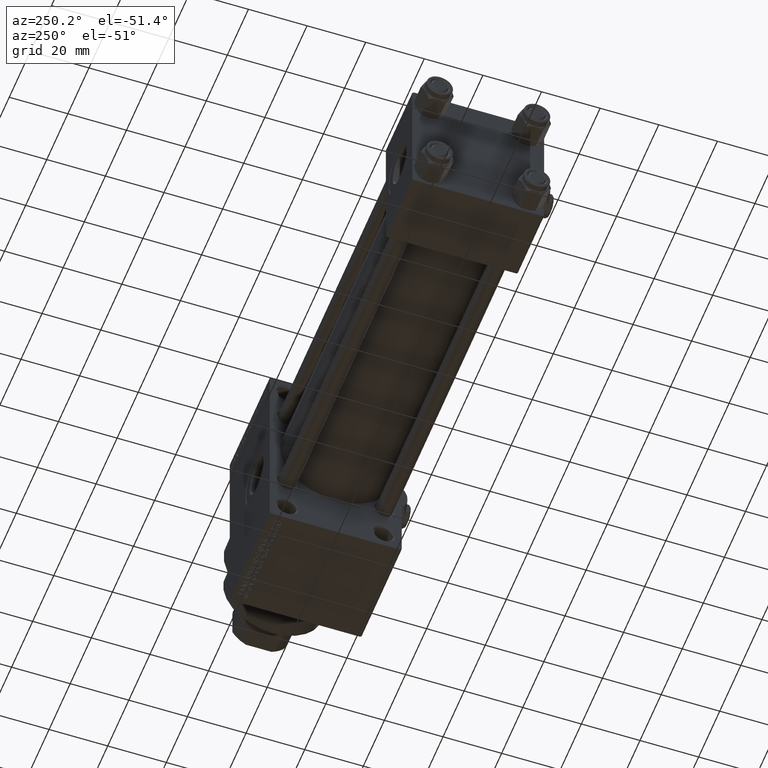
[diagram: clean part render]
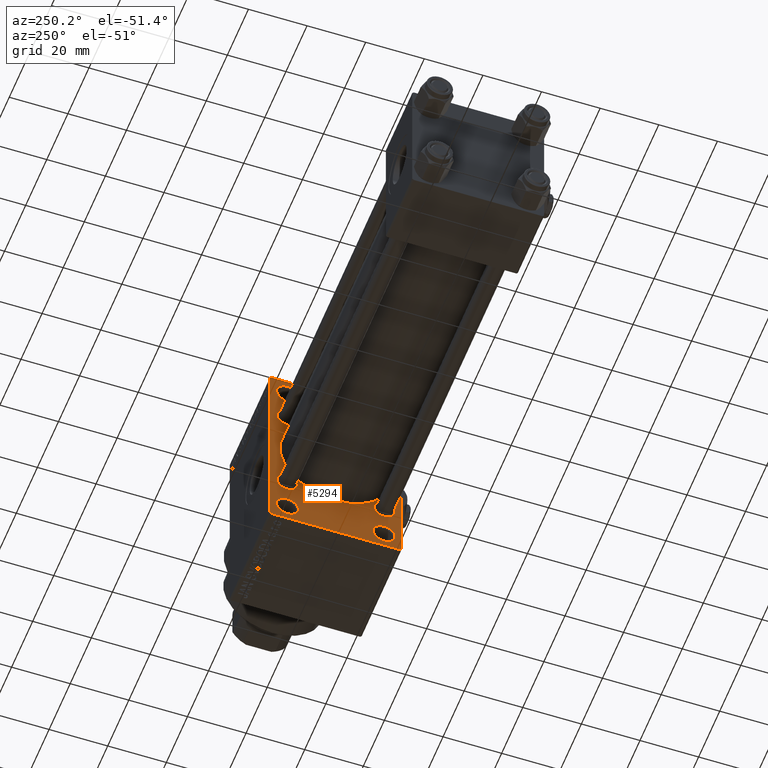
[diagram: same view with one face highlighted and labeled with its STEP entity id]
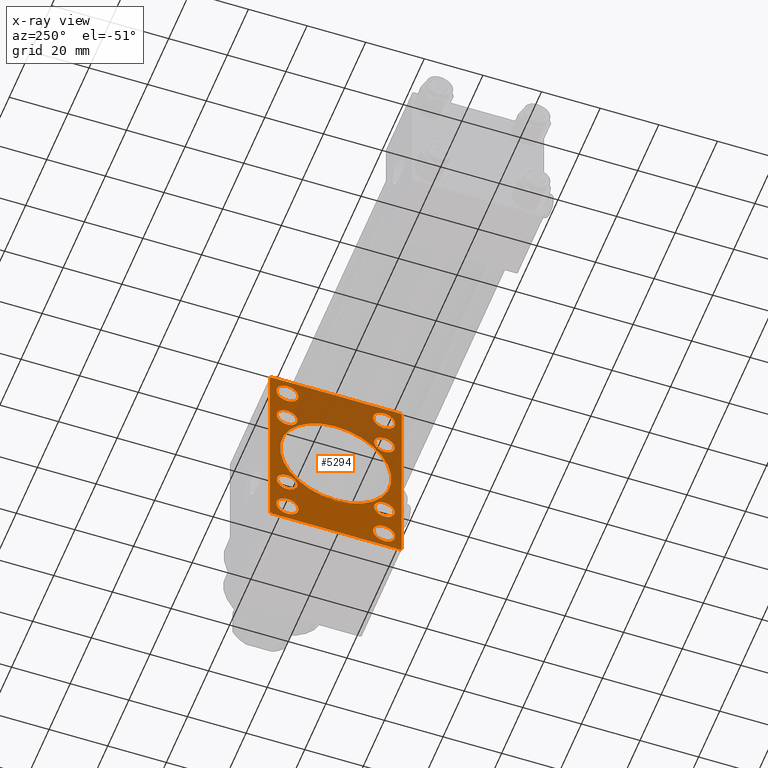
[diagram: x-ray of the same camera — body ghosted, the highlighted face saturated]
A machine part, auxiliary view. The second image highlights one B-rep face of the part: STEP entity #5294.
The next image is the same camera in x-ray: the body ghosted, the highlighted face saturated — about 39% of this face is hidden behind the body in this view.
In plain terms, the highlighted planar face has unit normal (-1, 0, 0).
Its self-contained STEP definition (entity closure, byte-faithful):
#87 = VECTOR ( 'NONE', #7431, 1000.000000000000114 ) ;
#561 = ORIENTED_EDGE ( 'NONE', *, *, #44245, .T. ) ;
#839 = EDGE_CURVE ( 'NONE', #30109, #42118, #27003, .T. ) ;
#1245 = DIRECTION ( 'NONE',  ( 1.000000000000000000, 0.000000000000000000, 0.000000000000000000 ) ) ;
#1407 = ORIENTED_EDGE ( 'NONE', *, *, #6014, .T. ) ;
#1424 = CIRCLE ( 'NONE', #41876, 3.500000000000006661 ) ;
#1483 = EDGE_CURVE ( 'NONE', #24694, #2503, #41616, .T. ) ;
#1682 = CARTESIAN_POINT ( 'NONE',  ( 135.0000000000000000, -16.50000000000000000, -32.75000000000000000 ) ) ;
#1800 = EDGE_CURVE ( 'NONE', #14224, #21044, #7919, .T. ) ;
#1976 = EDGE_CURVE ( 'NONE', #31731, #21044, #29468, .T. ) ;
#2061 = DIRECTION ( 'NONE',  ( 0.000000000000000000, 0.000000000000000000, 1.000000000000000000 ) ) ;
#2194 = CARTESIAN_POINT ( 'NONE',  ( 135.0000000000000000, 16.50000000000000000, 29.00000000000000355 ) ) ;
#2340 = DIRECTION ( 'NONE',  ( -1.000000000000000000, 0.000000000000000000, -0.000000000000000000 ) ) ;
#2401 = DIRECTION ( 'NONE',  ( 0.000000000000000000, -1.000000000000000000, 0.000000000000000000 ) ) ;
#2503 = VERTEX_POINT ( 'NONE', #12936 ) ;
#2793 = DIRECTION ( 'NONE',  ( 1.000000000000000000, 0.000000000000000000, 0.000000000000000000 ) ) ;
#2815 = EDGE_LOOP ( 'NONE', ( #36039, #4506 ) ) ;
#3751 = EDGE_CURVE ( 'NONE', #35847, #33369, #13637, .T. ) ;
#4206 = CARTESIAN_POINT ( 'NONE',  ( 135.0000000000000000, 16.50000000000000000, 29.00000000000000355 ) ) ;
#4506 = ORIENTED_EDGE ( 'NONE', *, *, #20758, .T. ) ;
#4736 = DIRECTION ( 'NONE',  ( 0.000000000000000000, 0.000000000000000000, 1.000000000000000000 ) ) ;
#4874 = DIRECTION ( 'NONE',  ( 1.000000000000000000, 0.000000000000000000, 0.000000000000000000 ) ) ;
#4969 = VECTOR ( 'NONE', #36856, 1000.000000000000000 ) ;
#4994 = ORIENTED_EDGE ( 'NONE', *, *, #31786, .T. ) ;
#5013 = AXIS2_PLACEMENT_3D ( 'NONE', #6060, #2340, #44552 ) ;
#5085 = CIRCLE ( 'NONE', #11428, 19.00000000000000000 ) ;
#5294 = ADVANCED_FACE ( 'NONE', ( #43583, #24909, #47548, #10033, #48036, #17703, #13507, #32862, #43817, #13992 ), #40086, .T. ) ;
#5829 = DIRECTION ( 'NONE',  ( -0.000000000000000000, -0.7071067811865279218, -0.7071067811865671127 ) ) ;
#5836 = DIRECTION ( 'NONE',  ( 0.000000000000000000, 0.000000000000000000, 1.000000000000000000 ) ) ;
#6014 = EDGE_CURVE ( 'NONE', #10787, #14224, #40579, .T. ) ;
#6060 = CARTESIAN_POINT ( 'NONE',  ( 135.0000000000000000, 0.000000000000000000, 0.000000000000000000 ) ) ;
#6174 = CIRCLE ( 'NONE', #22821, 3.500000000000006661 ) ;
#6509 = CARTESIAN_POINT ( 'NONE',  ( 135.0000000000000000, -16.50000000000000000, 29.00000000000000711 ) ) ;
#6556 = CARTESIAN_POINT ( 'NONE',  ( 135.0000000000000000, 22.49999999999999645, -35.00000000000000000 ) ) ;
#6817 = CIRCLE ( 'NONE', #36164, 3.750000000000003553 ) ;
#6835 = ORIENTED_EDGE ( 'NONE', *, *, #8084, .T. ) ;
#7030 = CARTESIAN_POINT ( 'NONE',  ( 135.0000000000000000, -16.50000000000000000, -28.99999999999999289 ) ) ;
#7055 = VERTEX_POINT ( 'NONE', #44824 ) ;
#7134 = CIRCLE ( 'NONE', #26153, 3.750000000000000000 ) ;
#7371 = DIRECTION ( 'NONE',  ( 1.000000000000000000, 0.000000000000000000, 0.000000000000000000 ) ) ;
#7431 = DIRECTION ( 'NONE',  ( 0.000000000000000000, -0.7071067811865474617, 0.7071067811865474617 ) ) ;
#7635 = CIRCLE ( 'NONE', #10796, 3.750000000000000000 ) ;
#7919 = LINE ( 'NONE', #22795, #87 ) ;
#7989 = AXIS2_PLACEMENT_3D ( 'NONE', #36216, #17087, #21048 ) ;
#8009 = EDGE_CURVE ( 'NONE', #16390, #37410, #28043, .T. ) ;
#8032 = EDGE_CURVE ( 'NONE', #21405, #41975, #26472, .T. ) ;
#8077 = CARTESIAN_POINT ( 'NONE',  ( 135.0000000000000000, 22.49999999999999645, 35.00000000000000000 ) ) ;
#8084 = EDGE_CURVE ( 'NONE', #33369, #35847, #45508, .T. ) ;
#8087 = DIRECTION ( 'NONE',  ( 0.000000000000000000, 0.000000000000000000, 1.000000000000000000 ) ) ;
#8190 = AXIS2_PLACEMENT_3D ( 'NONE', #2194, #43921, #43678 ) ;
#8488 = CARTESIAN_POINT ( 'NONE',  ( 135.0000000000000000, -16.50000000000000000, 29.00000000000000711 ) ) ;
#8588 = CARTESIAN_POINT ( 'NONE',  ( 135.0000000000000000, 16.59999999999999787, -16.60000000000000497 ) ) ;
#8596 = CARTESIAN_POINT ( 'NONE',  ( 135.0000000000000000, -2.602085213965210642E-15, 19.00000000000000000 ) ) ;
#8771 = ORIENTED_EDGE ( 'NONE', *, *, #34461, .T. ) ;
#8852 = DIRECTION ( 'NONE',  ( 0.000000000000000000, 0.000000000000000000, -1.000000000000000000 ) ) ;
#9117 = CARTESIAN_POINT ( 'NONE',  ( 135.0000000000000000, -16.59999999999999076, 16.60000000000000853 ) ) ;
#9157 = AXIS2_PLACEMENT_3D ( 'NONE', #20180, #43304, #2061 ) ;
#9425 = ORIENTED_EDGE ( 'NONE', *, *, #43037, .F. ) ;
#9540 = EDGE_LOOP ( 'NONE', ( #34437, #18584 ) ) ;
#9565 = DIRECTION ( 'NONE',  ( 0.000000000000000000, 0.000000000000000000, 1.000000000000000000 ) ) ;
#9864 = CIRCLE ( 'NONE', #47137, 3.500000000000006661 ) ;
#10017 = EDGE_CURVE ( 'NONE', #39165, #12100, #19256, .T. ) ;
#10033 = FACE_BOUND ( 'NONE', #20399, .T. ) ;
#10318 = ORIENTED_EDGE ( 'NONE', *, *, #38438, .T. ) ;
#10690 = CARTESIAN_POINT ( 'NONE',  ( 135.0000000000000000, -16.59999999999999076, 13.10000000000000142 ) ) ;
#10787 = VERTEX_POINT ( 'NONE', #29579 ) ;
#10796 = AXIS2_PLACEMENT_3D ( 'NONE', #8488, #23601, #39759 ) ;
#10877 = VERTEX_POINT ( 'NONE', #45728 ) ;
#10909 = CIRCLE ( 'NONE', #45022, 3.750000000000006661 ) ;
#11041 = CARTESIAN_POINT ( 'NONE',  ( 135.0000000000000000, -16.59999999999999076, -13.10000000000000142 ) ) ;
#11428 = AXIS2_PLACEMENT_3D ( 'NONE', #38893, #4874, #8852 ) ;
#12100 = VERTEX_POINT ( 'NONE', #39197 ) ;
#12331 = EDGE_CURVE ( 'NONE', #30291, #10877, #31247, .T. ) ;
#12439 = EDGE_CURVE ( 'NONE', #42118, #30109, #5085, .T. ) ;
#12936 = CARTESIAN_POINT ( 'NONE',  ( 135.0000000000000000, 22.49999999999999645, -34.50000000000000000 ) ) ;
#13507 = FACE_BOUND ( 'NONE', #2815, .T. ) ;
#13637 = CIRCLE ( 'NONE', #30269, 3.750000000000006661 ) ;
#13671 = EDGE_LOOP ( 'NONE', ( #46467, #48948 ) ) ;
#13766 = CARTESIAN_POINT ( 'NONE',  ( 135.0000000000000000, 16.59999999999999787, -16.60000000000000497 ) ) ;
#13992 = FACE_OUTER_BOUND ( 'NONE', #23561, .T. ) ;
#14224 = VERTEX_POINT ( 'NONE', #32385 ) ;
#14564 = AXIS2_PLACEMENT_3D ( 'NONE', #13766, #16996, #9565 ) ;
#14602 = ORIENTED_EDGE ( 'NONE', *, *, #35977, .T. ) ;
#14887 = ORIENTED_EDGE ( 'NONE', *, *, #10017, .T. ) ;
#15242 = ORIENTED_EDGE ( 'NONE', *, *, #8009, .T. ) ;
#15377 = ORIENTED_EDGE ( 'NONE', *, *, #18061, .T. ) ;
#15420 = EDGE_CURVE ( 'NONE', #30304, #37016, #29768, .T. ) ;
#15567 = DIRECTION ( 'NONE',  ( 0.000000000000000000, 0.000000000000000000, 1.000000000000000000 ) ) ;
#16082 = DIRECTION ( 'NONE',  ( 1.000000000000000000, 0.000000000000000000, 0.000000000000000000 ) ) ;
#16229 = CARTESIAN_POINT ( 'NONE',  ( 135.0000000000000000, 16.50000000000000000, -32.75000000000000000 ) ) ;
#16351 = ORIENTED_EDGE ( 'NONE', *, *, #839, .T. ) ;
#16390 = VERTEX_POINT ( 'NONE', #27967 ) ;
#16996 = DIRECTION ( 'NONE',  ( 1.000000000000000000, 0.000000000000000000, 0.000000000000000000 ) ) ;
#17087 = DIRECTION ( 'NONE',  ( 1.000000000000000000, 0.000000000000000000, 0.000000000000000000 ) ) ;
#17519 = LINE ( 'NONE', #43405, #40418 ) ;
#17576 = DIRECTION ( 'NONE',  ( 0.000000000000000000, 0.7071067811865474617, -0.7071067811865474617 ) ) ;
#17703 = FACE_BOUND ( 'NONE', #24512, .T. ) ;
#17796 = CARTESIAN_POINT ( 'NONE',  ( 135.0000000000000000, -22.00000000000001776, 35.00000000000000000 ) ) ;
#18061 = EDGE_CURVE ( 'NONE', #38359, #24694, #21300, .T. ) ;
#18584 = ORIENTED_EDGE ( 'NONE', *, *, #28356, .T. ) ;
#18649 = DIRECTION ( 'NONE',  ( 0.000000000000000000, 0.000000000000000000, 1.000000000000000000 ) ) ;
#19256 = CIRCLE ( 'NONE', #8190, 3.750000000000003553 ) ;
#19293 = AXIS2_PLACEMENT_3D ( 'NONE', #40357, #48312, #5836 ) ;
#20180 = CARTESIAN_POINT ( 'NONE',  ( 135.0000000000000000, -16.59999999999999076, 16.60000000000000853 ) ) ;
#20232 = EDGE_CURVE ( 'NONE', #7055, #20590, #33128, .T. ) ;
#20338 = CARTESIAN_POINT ( 'NONE',  ( 135.0000000000000000, -16.50000000000000000, 25.25000000000000711 ) ) ;
#20399 = EDGE_LOOP ( 'NONE', ( #14887, #29504 ) ) ;
#20590 = VERTEX_POINT ( 'NONE', #36171 ) ;
#20758 = EDGE_CURVE ( 'NONE', #41975, #21405, #1424, .T. ) ;
#21044 = VERTEX_POINT ( 'NONE', #25787 ) ;
#21048 = DIRECTION ( 'NONE',  ( 0.000000000000000000, 0.000000000000000000, -1.000000000000000000 ) ) ;
#21300 = LINE ( 'NONE', #44673, #27490 ) ;
#21405 = VERTEX_POINT ( 'NONE', #48608 ) ;
#21679 = CIRCLE ( 'NONE', #35917, 3.500000000000003109 ) ;
#22319 = DIRECTION ( 'NONE',  ( 1.000000000000000000, 0.000000000000000000, 0.000000000000000000 ) ) ;
#22795 = CARTESIAN_POINT ( 'NONE',  ( 135.0000000000000000, -28.49999999999999645, -28.49999999999999645 ) ) ;
#22821 = AXIS2_PLACEMENT_3D ( 'NONE', #37557, #16082, #18649 ) ;
#22948 = CARTESIAN_POINT ( 'NONE',  ( 135.0000000000000000, 16.59999999999999787, -20.10000000000000853 ) ) ;
#23449 = ORIENTED_EDGE ( 'NONE', *, *, #20232, .T. ) ;
#23561 = EDGE_LOOP ( 'NONE', ( #1407, #47222, #39474, #10318, #9425, #15377, #33565, #29256 ) ) ;
#23601 = DIRECTION ( 'NONE',  ( 1.000000000000000000, 0.000000000000000000, 0.000000000000000000 ) ) ;
#24008 = EDGE_CURVE ( 'NONE', #37016, #30304, #21679, .T. ) ;
#24235 = ORIENTED_EDGE ( 'NONE', *, *, #12439, .T. ) ;
#24512 = EDGE_LOOP ( 'NONE', ( #14602, #23449 ) ) ;
#24694 = VERTEX_POINT ( 'NONE', #28918 ) ;
#24704 = DIRECTION ( 'NONE',  ( 0.000000000000000000, 0.000000000000000000, 1.000000000000000000 ) ) ;
#24909 = FACE_BOUND ( 'NONE', #46378, .T. ) ;
#25020 = ORIENTED_EDGE ( 'NONE', *, *, #3751, .T. ) ;
#25441 = DIRECTION ( 'NONE',  ( -0.000000000000000000, 0.7071067811865279218, 0.7071067811865671127 ) ) ;
#25787 = CARTESIAN_POINT ( 'NONE',  ( 135.0000000000000000, -22.50000000000000355, -34.50000000000000000 ) ) ;
#26153 = AXIS2_PLACEMENT_3D ( 'NONE', #6509, #2793, #33075 ) ;
#26228 = CARTESIAN_POINT ( 'NONE',  ( 135.0000000000000000, -16.59999999999999076, -16.60000000000000853 ) ) ;
#26472 = CIRCLE ( 'NONE', #14564, 3.500000000000006661 ) ;
#27003 = CIRCLE ( 'NONE', #7989, 19.00000000000000000 ) ;
#27446 = CARTESIAN_POINT ( 'NONE',  ( 135.0000000000000000, 16.50000000000000000, -28.99999999999999289 ) ) ;
#27490 = VECTOR ( 'NONE', #17576, 1000.000000000000114 ) ;
#27922 = DIRECTION ( 'NONE',  ( 1.000000000000000000, 0.000000000000000000, 0.000000000000000000 ) ) ;
#27967 = CARTESIAN_POINT ( 'NONE',  ( 135.0000000000000000, 16.50000000000000000, -25.24999999999998934 ) ) ;
#28043 = CIRCLE ( 'NONE', #34380, 3.750000000000006661 ) ;
#28356 = EDGE_CURVE ( 'NONE', #10877, #30291, #9864, .T. ) ;
#28464 = CARTESIAN_POINT ( 'NONE',  ( 135.0000000000000000, -28.50000000000062883, 28.49999999999905143 ) ) ;
#28661 = LINE ( 'NONE', #48047, #37345 ) ;
#28918 = CARTESIAN_POINT ( 'NONE',  ( 135.0000000000000000, 22.49999999999999645, 34.50000000000000000 ) ) ;
#29256 = ORIENTED_EDGE ( 'NONE', *, *, #46929, .T. ) ;
#29468 = LINE ( 'NONE', #43660, #34946 ) ;
#29504 = ORIENTED_EDGE ( 'NONE', *, *, #31938, .T. ) ;
#29579 = CARTESIAN_POINT ( 'NONE',  ( 135.0000000000000000, 22.00000000000002132, -35.00000000000000000 ) ) ;
#29768 = CIRCLE ( 'NONE', #9157, 3.500000000000003109 ) ;
#29920 = VECTOR ( 'NONE', #25441, 1000.000000000000000 ) ;
#30109 = VERTEX_POINT ( 'NONE', #8596 ) ;
#30131 = CARTESIAN_POINT ( 'NONE',  ( 135.0000000000000000, -16.50000000000000000, 32.75000000000000711 ) ) ;
#30269 = AXIS2_PLACEMENT_3D ( 'NONE', #7030, #45031, #38054 ) ;
#30291 = VERTEX_POINT ( 'NONE', #11041 ) ;
#30304 = VERTEX_POINT ( 'NONE', #37115 ) ;
#31247 = CIRCLE ( 'NONE', #36012, 3.500000000000006661 ) ;
#31731 = VERTEX_POINT ( 'NONE', #42522 ) ;
#31786 = EDGE_CURVE ( 'NONE', #42616, #35392, #7635, .T. ) ;
#31938 = EDGE_CURVE ( 'NONE', #12100, #39165, #6817, .T. ) ;
#32385 = CARTESIAN_POINT ( 'NONE',  ( 135.0000000000000000, -21.99999999999998934, -35.00000000000000000 ) ) ;
#32656 = DIRECTION ( 'NONE',  ( 1.000000000000000000, 0.000000000000000000, 0.000000000000000000 ) ) ;
#32862 = FACE_BOUND ( 'NONE', #9540, .T. ) ;
#33075 = DIRECTION ( 'NONE',  ( 0.000000000000000000, 0.000000000000000000, 1.000000000000000000 ) ) ;
#33128 = CIRCLE ( 'NONE', #33917, 3.500000000000006661 ) ;
#33369 = VERTEX_POINT ( 'NONE', #47236 ) ;
#33412 = LINE ( 'NONE', #28464, #29920 ) ;
#33565 = ORIENTED_EDGE ( 'NONE', *, *, #1483, .T. ) ;
#33917 = AXIS2_PLACEMENT_3D ( 'NONE', #46942, #1245, #4736 ) ;
#33943 = DIRECTION ( 'NONE',  ( 0.000000000000000000, 0.000000000000000000, 1.000000000000000000 ) ) ;
#34012 = DIRECTION ( 'NONE',  ( 0.000000000000000000, 0.000000000000000000, 1.000000000000000000 ) ) ;
#34380 = AXIS2_PLACEMENT_3D ( 'NONE', #27446, #42626, #38889 ) ;
#34437 = ORIENTED_EDGE ( 'NONE', *, *, #12331, .T. ) ;
#34461 = EDGE_CURVE ( 'NONE', #37410, #16390, #10909, .T. ) ;
#34946 = VECTOR ( 'NONE', #44388, 1000.000000000000000 ) ;
#35236 = EDGE_LOOP ( 'NONE', ( #15242, #8771 ) ) ;
#35392 = VERTEX_POINT ( 'NONE', #30131 ) ;
#35847 = VERTEX_POINT ( 'NONE', #1682 ) ;
#35917 = AXIS2_PLACEMENT_3D ( 'NONE', #9117, #32656, #24704 ) ;
#35977 = EDGE_CURVE ( 'NONE', #20590, #7055, #6174, .T. ) ;
#36012 = AXIS2_PLACEMENT_3D ( 'NONE', #26228, #7371, #33943 ) ;
#36039 = ORIENTED_EDGE ( 'NONE', *, *, #8032, .T. ) ;
#36164 = AXIS2_PLACEMENT_3D ( 'NONE', #4206, #22319, #34012 ) ;
#36171 = CARTESIAN_POINT ( 'NONE',  ( 135.0000000000000000, 16.59999999999999787, 20.10000000000001208 ) ) ;
#36216 = CARTESIAN_POINT ( 'NONE',  ( 135.0000000000000000, -2.602085213965210642E-15, 0.000000000000000000 ) ) ;
#36856 = DIRECTION ( 'NONE',  ( 0.000000000000000000, -1.000000000000000000, 0.000000000000000000 ) ) ;
#37016 = VERTEX_POINT ( 'NONE', #10690 ) ;
#37115 = CARTESIAN_POINT ( 'NONE',  ( 135.0000000000000000, -16.59999999999999076, 20.10000000000001208 ) ) ;
#37345 = VECTOR ( 'NONE', #5829, 1000.000000000000000 ) ;
#37410 = VERTEX_POINT ( 'NONE', #16229 ) ;
#37557 = CARTESIAN_POINT ( 'NONE',  ( 135.0000000000000000, 16.59999999999999787, 16.60000000000000497 ) ) ;
#38054 = DIRECTION ( 'NONE',  ( 0.000000000000000000, 0.000000000000000000, 1.000000000000000000 ) ) ;
#38359 = VERTEX_POINT ( 'NONE', #47593 ) ;
#38438 = EDGE_CURVE ( 'NONE', #31731, #48573, #33412, .T. ) ;
#38631 = DIRECTION ( 'NONE',  ( 1.000000000000000000, 0.000000000000000000, 0.000000000000000000 ) ) ;
#38889 = DIRECTION ( 'NONE',  ( 0.000000000000000000, 0.000000000000000000, 1.000000000000000000 ) ) ;
#38893 = CARTESIAN_POINT ( 'NONE',  ( 135.0000000000000000, -2.602085213965210642E-15, 0.000000000000000000 ) ) ;
#39165 = VERTEX_POINT ( 'NONE', #39205 ) ;
#39197 = CARTESIAN_POINT ( 'NONE',  ( 135.0000000000000000, 16.50000000000000000, 25.25000000000000355 ) ) ;
#39205 = CARTESIAN_POINT ( 'NONE',  ( 135.0000000000000000, 16.50000000000000000, 32.75000000000000000 ) ) ;
#39474 = ORIENTED_EDGE ( 'NONE', *, *, #1976, .F. ) ;
#39759 = DIRECTION ( 'NONE',  ( 0.000000000000000000, 0.000000000000000000, 1.000000000000000000 ) ) ;
#39838 = CARTESIAN_POINT ( 'NONE',  ( 135.0000000000000000, -2.752562955852396712E-16, -19.00000000000000000 ) ) ;
#40086 = PLANE ( 'NONE',  #5013 ) ;
#40357 = CARTESIAN_POINT ( 'NONE',  ( 135.0000000000000000, -16.50000000000000000, -28.99999999999999289 ) ) ;
#40418 = VECTOR ( 'NONE', #2401, 1000.000000000000000 ) ;
#40579 = LINE ( 'NONE', #6556, #4969 ) ;
#41616 = LINE ( 'NONE', #8077, #43730 ) ;
#41876 = AXIS2_PLACEMENT_3D ( 'NONE', #8588, #38631, #8087 ) ;
#41975 = VERTEX_POINT ( 'NONE', #22948 ) ;
#42118 = VERTEX_POINT ( 'NONE', #39838 ) ;
#42353 = DIRECTION ( 'NONE',  ( 0.000000000000000000, 0.000000000000000000, -1.000000000000000000 ) ) ;
#42522 = CARTESIAN_POINT ( 'NONE',  ( 135.0000000000000000, -22.50000000000000355, 34.50000000000000000 ) ) ;
#42616 = VERTEX_POINT ( 'NONE', #20338 ) ;
#42626 = DIRECTION ( 'NONE',  ( 1.000000000000000000, 0.000000000000000000, 0.000000000000000000 ) ) ;
#43037 = EDGE_CURVE ( 'NONE', #38359, #48573, #17519, .T. ) ;
#43094 = DIRECTION ( 'NONE',  ( 0.000000000000000000, 0.000000000000000000, 1.000000000000000000 ) ) ;
#43304 = DIRECTION ( 'NONE',  ( 1.000000000000000000, 0.000000000000000000, 0.000000000000000000 ) ) ;
#43405 = CARTESIAN_POINT ( 'NONE',  ( 135.0000000000000000, 22.49999999999999645, 35.00000000000000000 ) ) ;
#43583 = FACE_BOUND ( 'NONE', #44845, .T. ) ;
#43660 = CARTESIAN_POINT ( 'NONE',  ( 135.0000000000000000, -22.50000000000000355, 35.00000000000000000 ) ) ;
#43678 = DIRECTION ( 'NONE',  ( 0.000000000000000000, 0.000000000000000000, 1.000000000000000000 ) ) ;
#43730 = VECTOR ( 'NONE', #42353, 1000.000000000000000 ) ;
#43817 = FACE_BOUND ( 'NONE', #44151, .T. ) ;
#43921 = DIRECTION ( 'NONE',  ( 1.000000000000000000, 0.000000000000000000, 0.000000000000000000 ) ) ;
#44151 = EDGE_LOOP ( 'NONE', ( #16351, #24235 ) ) ;
#44245 = EDGE_CURVE ( 'NONE', #35392, #42616, #7134, .T. ) ;
#44388 = DIRECTION ( 'NONE',  ( 0.000000000000000000, 0.000000000000000000, -1.000000000000000000 ) ) ;
#44552 = DIRECTION ( 'NONE',  ( -0.000000000000000000, 0.000000000000000000, 1.000000000000000000 ) ) ;
#44673 = CARTESIAN_POINT ( 'NONE',  ( 135.0000000000000000, 28.49999999999999645, 28.49999999999999645 ) ) ;
#44824 = CARTESIAN_POINT ( 'NONE',  ( 135.0000000000000000, 16.59999999999999787, 13.09999999999999609 ) ) ;
#44845 = EDGE_LOOP ( 'NONE', ( #561, #4994 ) ) ;
#45022 = AXIS2_PLACEMENT_3D ( 'NONE', #47542, #27922, #43094 ) ;
#45031 = DIRECTION ( 'NONE',  ( 1.000000000000000000, 0.000000000000000000, 0.000000000000000000 ) ) ;
#45508 = CIRCLE ( 'NONE', #19293, 3.750000000000006661 ) ;
#45728 = CARTESIAN_POINT ( 'NONE',  ( 135.0000000000000000, -16.59999999999999076, -20.10000000000001208 ) ) ;
#45898 = CARTESIAN_POINT ( 'NONE',  ( 135.0000000000000000, -16.59999999999999076, -16.60000000000000853 ) ) ;
#46378 = EDGE_LOOP ( 'NONE', ( #6835, #25020 ) ) ;
#46384 = DIRECTION ( 'NONE',  ( 1.000000000000000000, 0.000000000000000000, 0.000000000000000000 ) ) ;
#46467 = ORIENTED_EDGE ( 'NONE', *, *, #15420, .T. ) ;
#46929 = EDGE_CURVE ( 'NONE', #2503, #10787, #28661, .T. ) ;
#46942 = CARTESIAN_POINT ( 'NONE',  ( 135.0000000000000000, 16.59999999999999787, 16.60000000000000497 ) ) ;
#47137 = AXIS2_PLACEMENT_3D ( 'NONE', #45898, #46384, #15567 ) ;
#47222 = ORIENTED_EDGE ( 'NONE', *, *, #1800, .T. ) ;
#47236 = CARTESIAN_POINT ( 'NONE',  ( 135.0000000000000000, -16.50000000000000000, -25.24999999999998934 ) ) ;
#47542 = CARTESIAN_POINT ( 'NONE',  ( 135.0000000000000000, 16.50000000000000000, -28.99999999999999289 ) ) ;
#47548 = FACE_BOUND ( 'NONE', #35236, .T. ) ;
#47593 = CARTESIAN_POINT ( 'NONE',  ( 135.0000000000000000, 21.99999999999999645, 35.00000000000000000 ) ) ;
#48036 = FACE_BOUND ( 'NONE', #13671, .T. ) ;
#48047 = CARTESIAN_POINT ( 'NONE',  ( 135.0000000000000000, 28.50000000000061817, -28.49999999999904077 ) ) ;
#48312 = DIRECTION ( 'NONE',  ( 1.000000000000000000, 0.000000000000000000, 0.000000000000000000 ) ) ;
#48573 = VERTEX_POINT ( 'NONE', #17796 ) ;
#48608 = CARTESIAN_POINT ( 'NONE',  ( 135.0000000000000000, 16.59999999999999787, -13.09999999999999787 ) ) ;
#48948 = ORIENTED_EDGE ( 'NONE', *, *, #24008, .T. ) ;